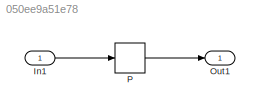
MODEL slx_050ee9a51e78
KIND model
CONFIG AbsTol = auto
CONFIG EnableMultiTasking = off
CONFIG FixedStep = auto
CONFIG MaxStep = auto
CONFIG MinStep = auto
CONFIG RelTol = 1e-3
CONFIG SampleTimeConstraint = Unconstrained
CONFIG Solver = FixedStepDiscrete
CONFIG SolverName = FixedStepDiscrete
CONFIG StartTime = 0.0
CONFIG StopTime = 10.0
BLOCK [Inport] In1
  IconDisplay = Port number
  OutDataTypeStr = uint8
  PortDimensions = 4
BLOCK [Outport] Out1
  IconDisplay = Port number
BLOCK [Lookup_n-D] P
  BreakpointsForDimension1 = [55.2461095028981;57.2835495144318]
  BreakpointsForDimension1DataTypeStr = int8
  BreakpointsForDimension2 = [13.3717433986152;15.7802440380817;31.7873155868399;72.437778174928;97.0036656277247]
  BreakpointsForDimension2DataTypeStr = int8
  BreakpointsForDimension3 = [45.3667611687802;77.6873337850889;91.8165881858109]
  BreakpointsForDimension3DataTypeStr = int8
  BreakpointsForDimension4 = [65.9568563136551;86.9300085763922]
  BreakpointsForDimension4DataTypeStr = int8
  ExtrapMethod = Clip
  FractionDataTypeStr = single
  InternalRulePriority = Speed
  NumberOfTableDimensions = 4
  OutDataTypeStr = single
  Ports = [1, 1]
  SaturateOnIntegerOverflow = on
  Table = reshape(repmat([4 5 6 7 8;16 19 20 21 22;10 18 23 24 25],2,2),[2,5,3,2])
  UseLastTableValue = on
  UseOneInputPortForAllInputData = on
LINE In1:1 -> P:1
LINE P:1 -> Out1:1
